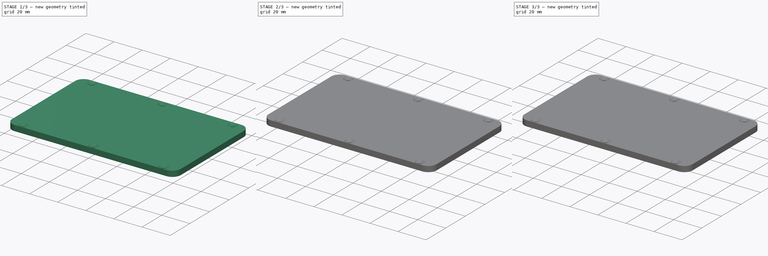
[diagram: build sequence overview — one tinted view per stage of 3, left to right]
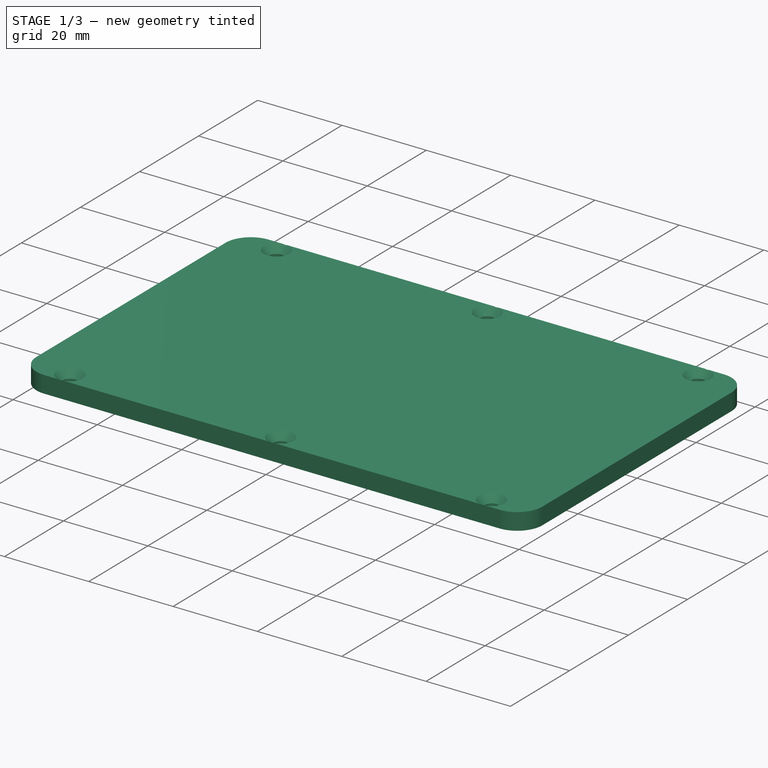
[diagram: stage 1 of 3 — iso view after this stage's code; geometry added in this stage tinted green]
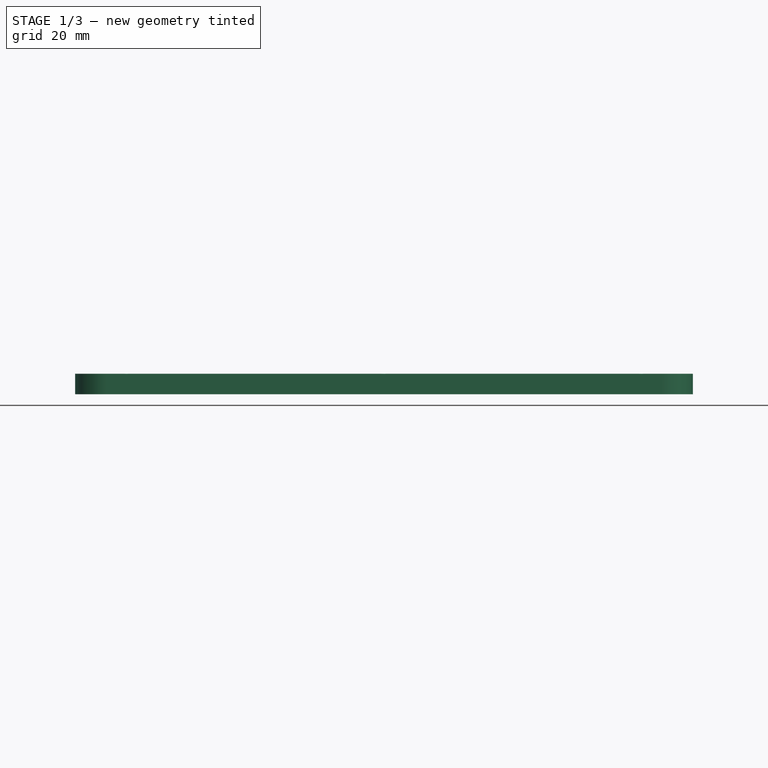
[diagram: stage 1 of 3 — front view after this stage's code; geometry added in this stage tinted green]
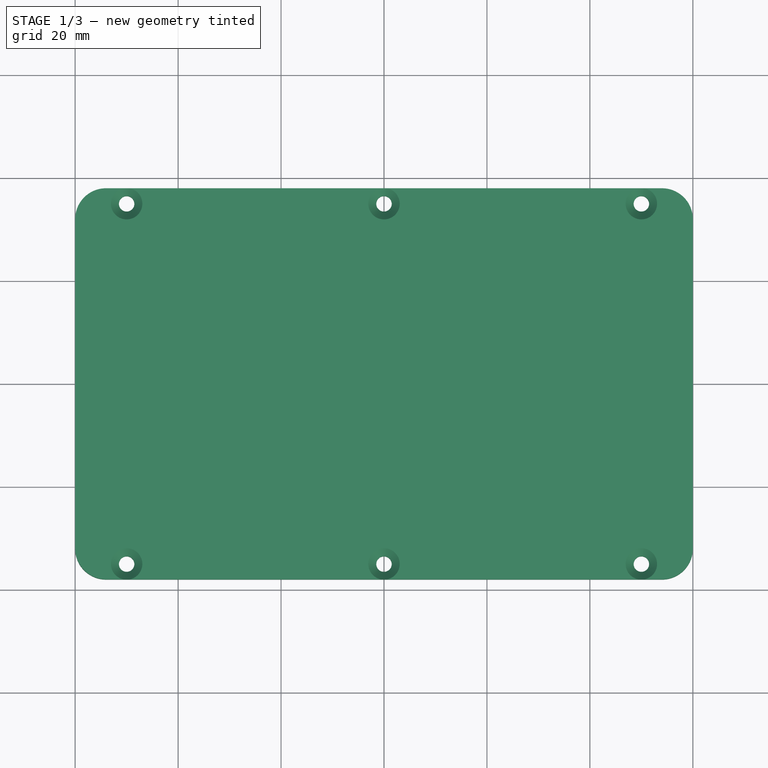
[diagram: stage 1 of 3 — top view after this stage's code; geometry added in this stage tinted green]
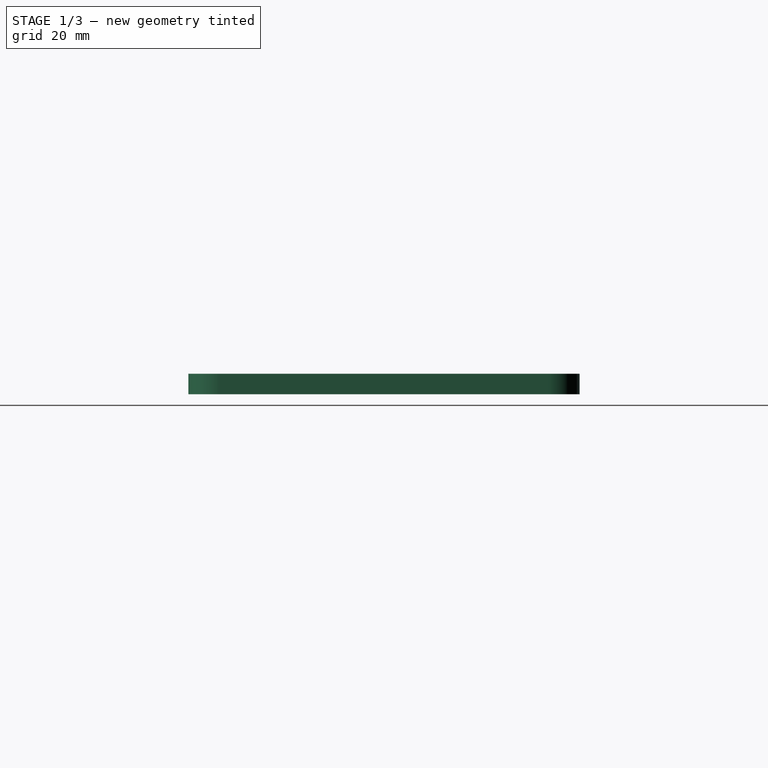
[diagram: stage 1 of 3 — right view after this stage's code; geometry added in this stage tinted green]
FCSTD DOCUMENT  (FreeCAD 0.21R33771 (Git))
Label: Капак шаси
License: All rights reserved
LicenseURL: https://en.wikipedia.org/wiki/All_rights_reserved
objects: Sketcher::SketchObject×5, PartDesign::Pad×3, PartDesign::Hole×1, PartDesign::Pocket×1, PartDesign::Body×1
note: 16 computed .brp shape members not serialized (recipe doc carries the construction recipe); baked Part::Feature solids carry a one-line shape summary decoded from their .brp

FEATURE [Sketcher::SketchObject] Sketch
  FullyConstrained = true
  MapMode = 5
  Support = -> [XY_Plane]
  sketch-geometry (8):
    g0: LineSegment StartX=60 StartY=-32 StartZ=0 EndX=60 EndY=32 EndZ=0
    g1: LineSegment StartX=54 StartY=38 StartZ=0 EndX=-54 EndY=38 EndZ=0
    g2: LineSegment StartX=-60 StartY=32 StartZ=0 EndX=-60 EndY=-32 EndZ=0
    g3: LineSegment StartX=-54 StartY=-38 StartZ=0 EndX=54 EndY=-38 EndZ=0
    g4: ArcOfCircle CenterX=-54 CenterY=32 CenterZ=0 NormalX=0 NormalY=0 NormalZ=1 AngleXU=0 Radius=6 StartAngle=1.5708 EndAngle=3.14159
    g5: ArcOfCircle CenterX=54 CenterY=32 CenterZ=0 NormalX=0 NormalY=0 NormalZ=1 AngleXU=0 Radius=6 StartAngle=-2.7e-15 EndAngle=1.5708
    g6: ArcOfCircle CenterX=54 CenterY=-32 CenterZ=0 NormalX=0 NormalY=0 NormalZ=1 AngleXU=0 Radius=6 StartAngle=4.71239 EndAngle=6.28319
    g7: ArcOfCircle CenterX=-54 CenterY=-32 CenterZ=0 NormalX=0 NormalY=0 NormalZ=1 AngleXU=0 Radius=6 StartAngle=3.14159 EndAngle=4.71239
  constraints (20):
    c: Horizontal(g1)
    c: Horizontal(g3)
    c: Vertical(g0)
    c: Vertical(g2)
    c: Tangent(g2,g4) = -1.5708
    c: Tangent(g1,g4) = -1.5708
    c: Tangent(g1,g5) = -1.5708
    c: Tangent(g0,g5) = -1.5708
    c: Tangent(g0,g6) = -1.5708
    c: Tangent(g3,g6) = -1.5708
    c: Tangent(g3,g7) = -1.5708
    c: Tangent(g2,g7) = -1.5708
    c: Radius(g7) = 6
    c: Equal(g4,g5)
    c: Equal(g5,g6)
    c: Equal(g6,g7)
    c: DistanceX(g2,g0) = 120
    c: DistanceX(g2,g-1) = 60
    c: DistanceY(g3,g-1) = 38
    c: DistanceY(g-1,g1) = 38
FEATURE [PartDesign::Pad] Pad
  Direction = (0,0,1)
  Length = 4
  Length2 = 10
  Profile = -> Sketch
  ReferenceAxis = -> Sketch [N_Axis]
  Type = 0
FEATURE [Sketcher::SketchObject] Sketch001
  FullyConstrained = true
  MapMode = 5
  Placement = pos=(0,0,4) rot=(0,0,1;0rad)
  Support = -> [Pad]
  sketch-geometry (6):
    g0: Circle CenterX=0 CenterY=-35 CenterZ=0 NormalX=0 NormalY=0 NormalZ=1 AngleXU=0 Radius=1.5
    g1: Circle CenterX=0 CenterY=35 CenterZ=0 NormalX=0 NormalY=0 NormalZ=1 AngleXU=0 Radius=1.5
    g2: Circle CenterX=50 CenterY=35 CenterZ=0 NormalX=0 NormalY=0 NormalZ=1 AngleXU=0 Radius=1.5
    g3: Circle CenterX=-50 CenterY=35 CenterZ=0 NormalX=0 NormalY=0 NormalZ=1 AngleXU=0 Radius=1.5
    g4: Circle CenterX=-50 CenterY=-35 CenterZ=0 NormalX=0 NormalY=0 NormalZ=1 AngleXU=0 Radius=1.5
    g5: Circle CenterX=50 CenterY=-35 CenterZ=0 NormalX=0 NormalY=0 NormalZ=1 AngleXU=0 Radius=1.5
  constraints (16):
    c: PointOnObject(g0,g-2)
    c: Radius(g0) = 1.5
    c: PointOnObject(g1,g-2)
    c: Radius(g1) = 1.5
    c: Equal(g3,g4)
    c: Equal(g4,g5)
    c: Equal(g5,g2)
    c: Equal(g2,g1)
    c: DistanceY(g0,g-1) = 35
    c: DistanceY(g5,g-1) = 35
    c: DistanceY(g4,g-1) = 35
    c: Symmetric(g3,g4,g-1)
    c: Symmetric(g5,g2,g-1)
    c: DistanceY(g-1,g1) = 35
    c: DistanceX(g3,g-1) = 50
    c: DistanceX(g-1,g2) = 50
FEATURE [PartDesign::Hole] Hole
  BaseFeature = -> Pad
  CustomThreadClearance = 0
  Depth = 25
  DepthType = 0
  Diameter = 3
  DrillForDepth = false
  DrillPoint = 1
  DrillPointAngle = 118
  HoleCutCountersinkAngle = 90
  HoleCutCustomValues = false
  HoleCutDepth = 0
  HoleCutDiameter = 6.1
  HoleCutType = 2
  ModelThread = false
  Profile = -> Sketch001
  Tapered = false
  TaperedAngle = 90
  ThreadClass = 0
  ThreadDepth = 25
  ThreadDepthType = 0
  ThreadDirection = 0
  ThreadFit = 0
  ThreadSize = 0
  ThreadType = 0
  Threaded = false
  UseCustomThreadClearance = false
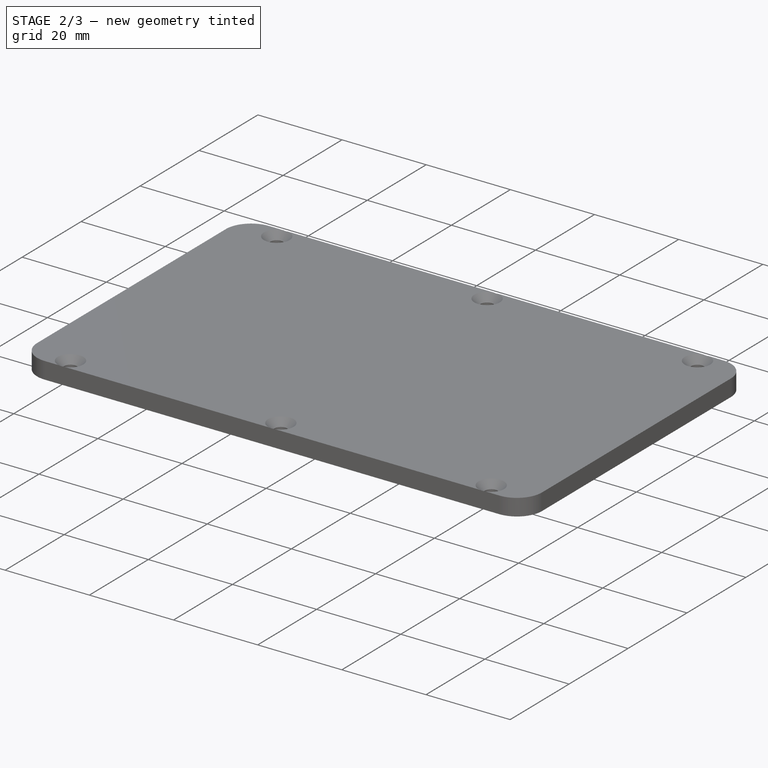
[diagram: stage 2 of 3 — iso view after this stage's code; geometry added in this stage tinted green]
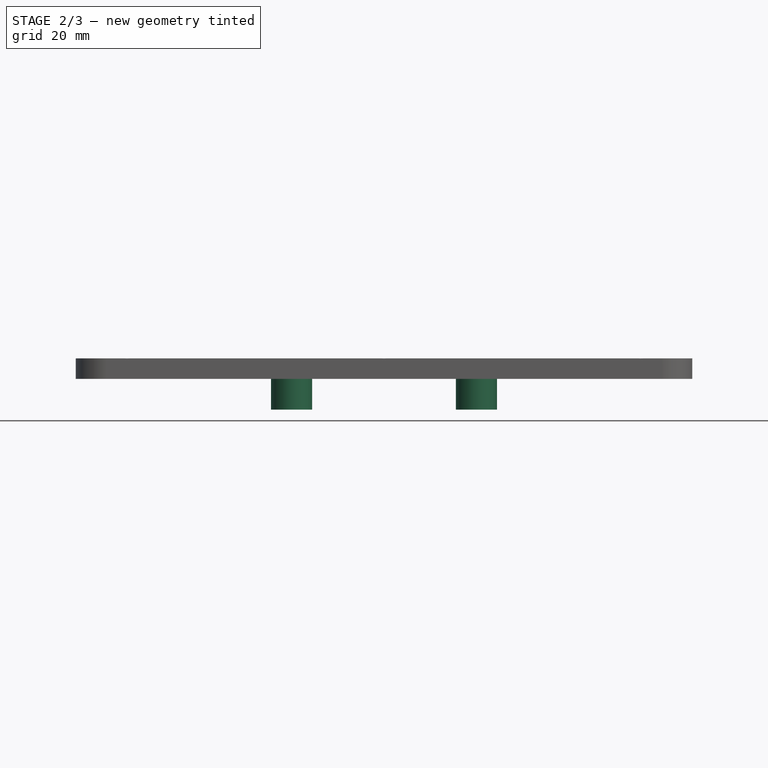
[diagram: stage 2 of 3 — front view after this stage's code; geometry added in this stage tinted green]
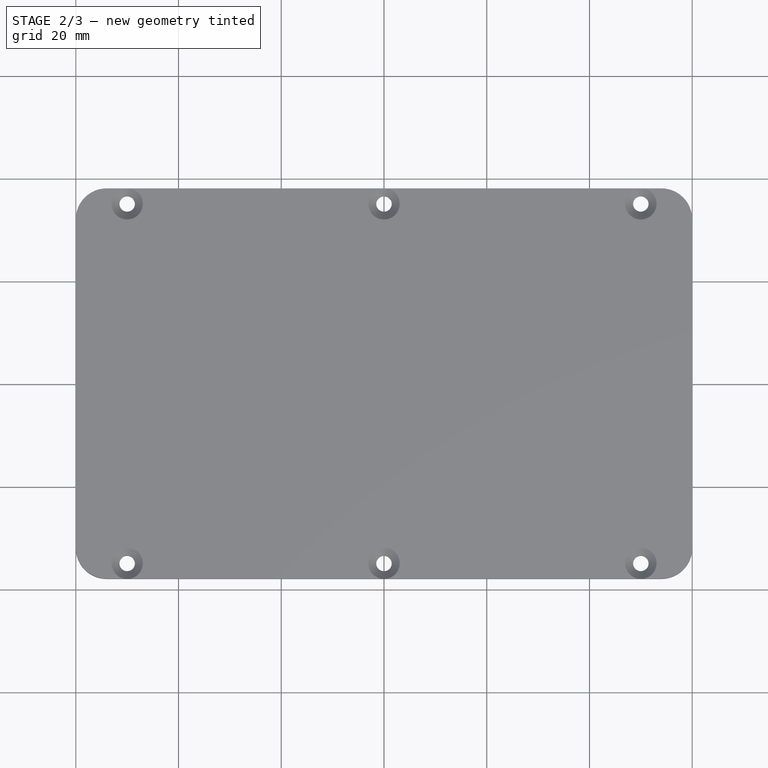
[diagram: stage 2 of 3 — top view after this stage's code; geometry added in this stage tinted green]
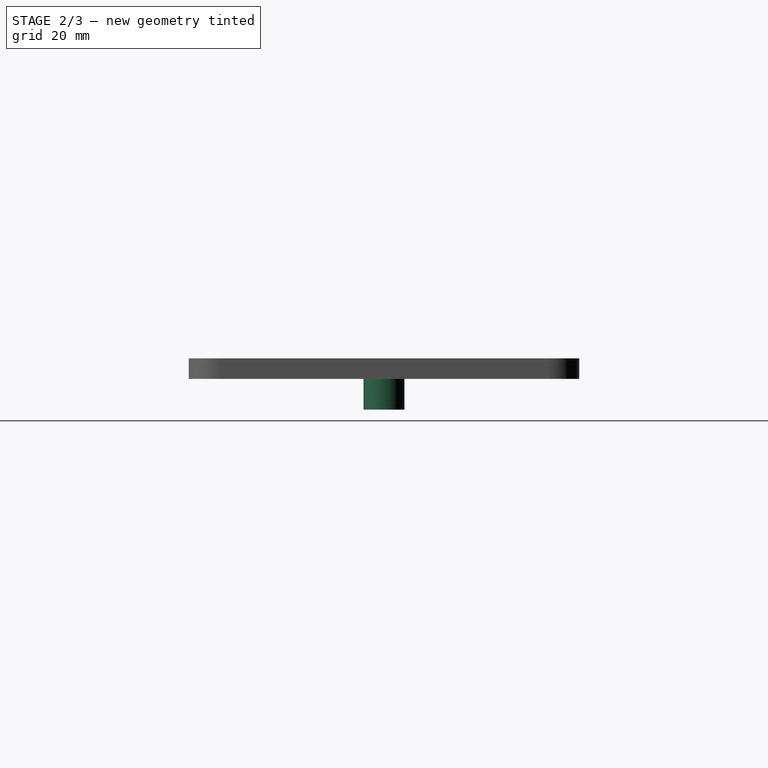
[diagram: stage 2 of 3 — right view after this stage's code; geometry added in this stage tinted green]
FEATURE [Sketcher::SketchObject] Sketch002
  FullyConstrained = true
  MapMode = 5
  Placement = pos=(0,0,0) rot=(1,0,0;3.14159rad)
  Support = -> [Hole]
  sketch-geometry (2):
    g0: Circle CenterX=18 CenterY=0 CenterZ=0 NormalX=0 NormalY=0 NormalZ=1 AngleXU=0 Radius=4
    g1: Circle CenterX=-18 CenterY=0 CenterZ=0 NormalX=0 NormalY=0 NormalZ=1 AngleXU=0 Radius=4
  constraints (6):
    c: PointOnObject(g0,g-1)
    c: PointOnObject(g1,g-1)
    c: Equal(g1,g0)
    c: Radius(g1) = 4
    c: DistanceX(g1,g-1) = 18
    c: DistanceX(g-1,g0) = 18
FEATURE [PartDesign::Pad] Pad001
  BaseFeature = -> Hole
  Direction = (0,0,-1)
  Length = 6
  Length2 = 10
  Profile = -> Sketch002
  ReferenceAxis = -> Sketch002 [N_Axis]
  Type = 0
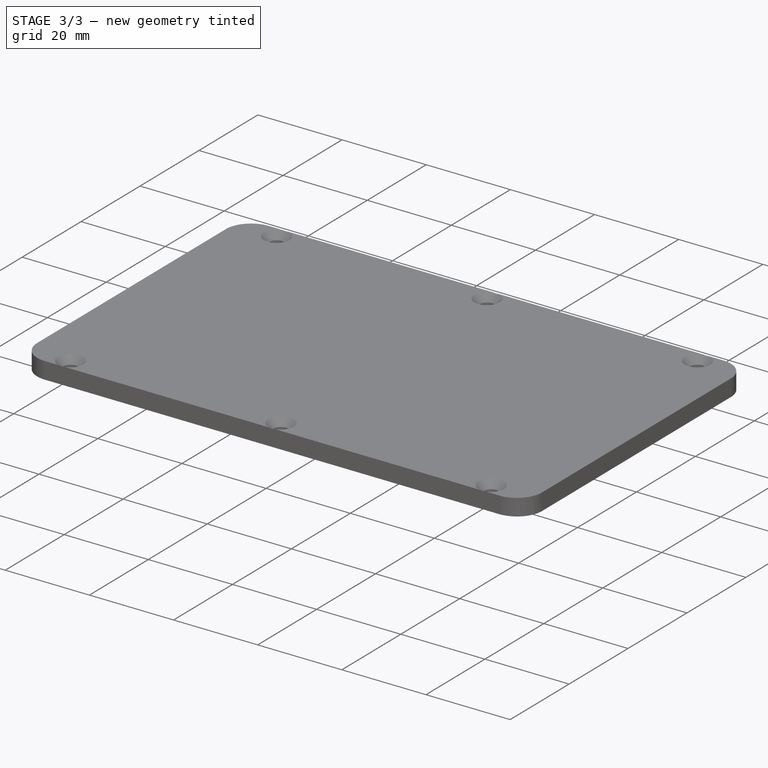
[diagram: stage 3 of 3 — iso view after this stage's code; geometry added in this stage tinted green]
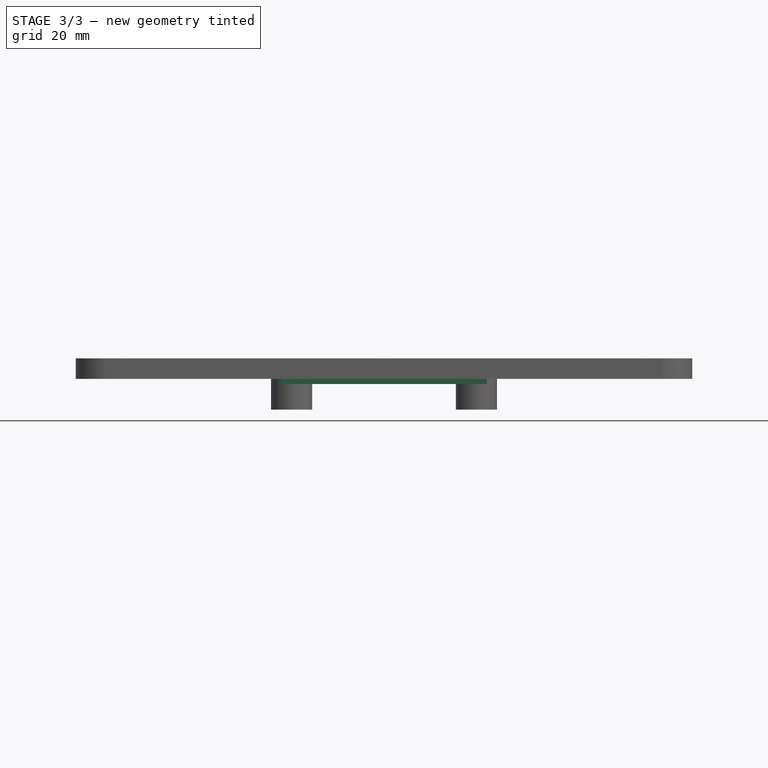
[diagram: stage 3 of 3 — front view after this stage's code; geometry added in this stage tinted green]
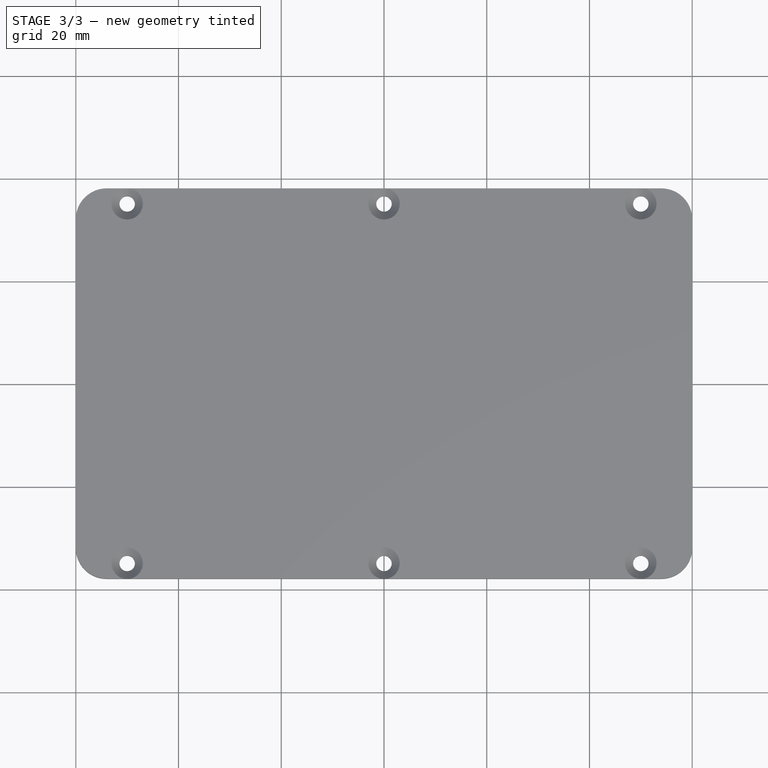
[diagram: stage 3 of 3 — top view after this stage's code; geometry added in this stage tinted green]
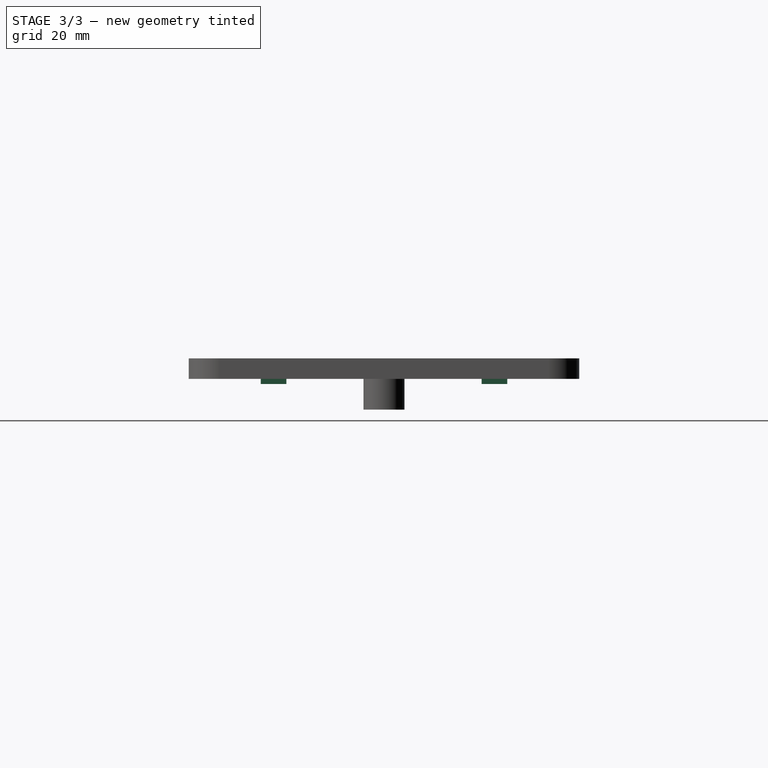
[diagram: stage 3 of 3 — right view after this stage's code; geometry added in this stage tinted green]
FEATURE [Sketcher::SketchObject] Sketch003
  FullyConstrained = true
  MapMode = 5
  Placement = pos=(0,0,0) rot=(1,0,0;3.14159rad)
  Support = -> [Pad001]
  sketch-geometry (8):
    g0: LineSegment StartX=-20 StartY=24 StartZ=0 EndX=20 EndY=24 EndZ=0
    g1: LineSegment StartX=20 StartY=24 StartZ=0 EndX=20 EndY=19 EndZ=0
    g2: LineSegment StartX=20 StartY=19 StartZ=0 EndX=-20 EndY=19 EndZ=0
    g3: LineSegment StartX=-20 StartY=19 StartZ=0 EndX=-20 EndY=24 EndZ=0
    g4: LineSegment StartX=-20 StartY=-19 StartZ=0 EndX=20 EndY=-19 EndZ=0
    g5: LineSegment StartX=20 StartY=-19 StartZ=0 EndX=20 EndY=-24 EndZ=0
    g6: LineSegment StartX=20 StartY=-24 StartZ=0 EndX=-20 EndY=-24 EndZ=0
    g7: LineSegment StartX=-20 StartY=-24 StartZ=0 EndX=-20 EndY=-19 EndZ=0
  constraints (24):
    c: Coincident(g0,g1)
    c: Coincident(g1,g2)
    c: Coincident(g2,g3)
    c: Coincident(g3,g0)
    c: Horizontal(g0)
    c: Horizontal(g2)
    c: Vertical(g1)
    c: Vertical(g3)
    c: Coincident(g4,g5)
    c: Coincident(g5,g6)
    c: Coincident(g6,g7)
    c: Coincident(g7,g4)
    c: Horizontal(g4)
    c: Horizontal(g6)
    c: Vertical(g5)
    c: Vertical(g7)
    c: DistanceY(g7,g7) = 5
    c: DistanceY(g3,g3) = 5
    c: DistanceX(g0,g0) = 40
    c: DistanceX(g4,g4) = 40
    c: DistanceX(g2,g-1) = 20
    c: DistanceY(g4,g-1) = 19
    c: DistanceY(g-1,g1) = 19
    c: DistanceX(g6,g-1) = 20
FEATURE [PartDesign::Pad] Pad002
  BaseFeature = -> Pad001
  Direction = (0,0,-1)
  Length = 1
  Length2 = 10
  Profile = -> Sketch003
  ReferenceAxis = -> Sketch003 [N_Axis]
  Type = 0
FEATURE [Sketcher::SketchObject] Sketch004
  FullyConstrained = true
  MapMode = 5
  Placement = pos=(0,0,0) rot=(1,0,0;3.14159rad)
  Support = -> [Pad002]
  sketch-geometry (16):
    g0: LineSegment StartX=-57 StartY=32 StartZ=0 EndX=-27 EndY=32 EndZ=0
    g1: LineSegment StartX=-27 StartY=32 StartZ=0 EndX=-27 EndY=-32 EndZ=0
    g2: LineSegment StartX=-27 StartY=-32 StartZ=0 EndX=-57 EndY=-32 EndZ=0
    g3: LineSegment StartX=-57 StartY=-32 StartZ=0 EndX=-57 EndY=32 EndZ=0
    g4: LineSegment StartX=27 StartY=32 StartZ=0 EndX=57 EndY=32 EndZ=0
    g5: LineSegment StartX=57 StartY=32 StartZ=0 EndX=57 EndY=-28 EndZ=0
    g6: LineSegment StartX=57 StartY=-28 StartZ=0 EndX=27 EndY=-28 EndZ=0
    g7: LineSegment StartX=27 StartY=-28 StartZ=0 EndX=27 EndY=32 EndZ=0
    g8: LineSegment StartX=-22 StartY=15 StartZ=0 EndX=22 EndY=15 EndZ=0
    g9: LineSegment StartX=22 StartY=15 StartZ=0 EndX=22 EndY=7 EndZ=0
    g10: LineSegment StartX=22 StartY=7 StartZ=0 EndX=-22 EndY=7 EndZ=0
    g11: LineSegment StartX=-22 StartY=7 StartZ=0 EndX=-22 EndY=15 EndZ=0
    g12: LineSegment StartX=-22 StartY=-7 StartZ=0 EndX=22 EndY=-7 EndZ=0
    g13: LineSegment StartX=22 StartY=-7 StartZ=0 EndX=22 EndY=-15 EndZ=0
    g14: LineSegment StartX=22 StartY=-15 StartZ=0 EndX=-22 EndY=-15 EndZ=0
    g15: LineSegment StartX=-22 StartY=-15 StartZ=0 EndX=-22 EndY=-7 EndZ=0
  constraints (48):
    c: Coincident(g0,g1)
    c: Coincident(g1,g2)
    c: Coincident(g2,g3)
    c: Coincident(g3,g0)
    c: Horizontal(g0)
    c: Horizontal(g2)
    c: Vertical(g1)
    c: Vertical(g3)
    c: Coincident(g4,g5)
    c: Coincident(g5,g6)
    c: Coincident(g6,g7)
    c: Coincident(g7,g4)
    c: Horizontal(g4)
    c: Horizontal(g6)
    c: Vertical(g5)
    c: Vertical(g7)
    c: Coincident(g8,g9)
    c: Coincident(g9,g10)
    c: Coincident(g10,g11)
    c: Coincident(g11,g8)
    c: Horizontal(g8)
    c: Horizontal(g10)
    c: Vertical(g9)
    c: Vertical(g11)
    c: Coincident(g12,g13)
    c: Coincident(g13,g14)
    c: Coincident(g14,g15)
    c: Coincident(g15,g12)
    c: Horizontal(g12)
    c: Horizontal(g14)
    c: Vertical(g13)
    c: Vertical(g15)
    c: DistanceX(g0,g0) = 30
    c: DistanceY(g3,g3) = 64
    c: DistanceX(g0,g-1) = 57
    c: DistanceY(g-1,g0) = 32
    c: DistanceX(g4,g4) = 30
    c: DistanceY(g5,g5) = 60
    c: DistanceX(g-1,g4) = 57
    c: DistanceY(g-1,g4) = 32
    c: DistanceY(g9,g9) = 8
    c: DistanceX(g8,g8) = 44
    c: DistanceY(g-1,g8) = 15
    c: DistanceX(g-1,g8) = 22
    c: DistanceY(g13,g13) = 8
    c: DistanceY(g13,g-1) = 15
    c: DistanceX(g-1,g12) = 22
    c: DistanceX(g14,g14) = 44
FEATURE [PartDesign::Pocket] Pocket
  BaseFeature = -> Pad002
  Direction = (0,0,1)
  Length = 2
  Length2 = 5
  Profile = -> Sketch004
  ReferenceAxis = -> Sketch004 [N_Axis]
  Type = 0
FEATURE [PartDesign::Body] Body
  Group = -> [Sketch,Pad,Sketch001,Hole,Sketch002,Pad001,Sketch003,Pad002,Sketch004,Pocket]
  Origin = -> Origin
  Tip = -> Pocket
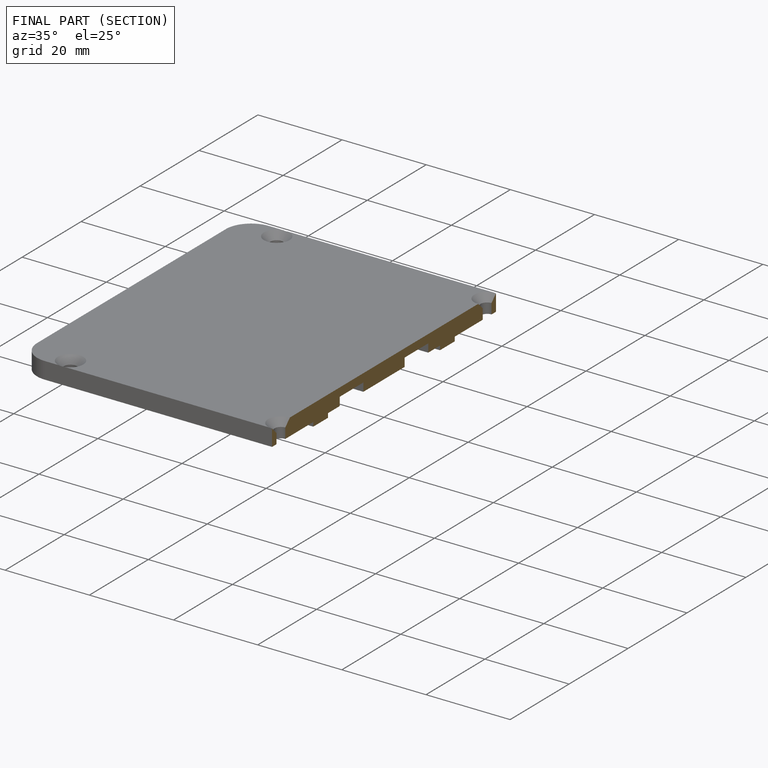
[diagram: finished part — half-section view (interior)]
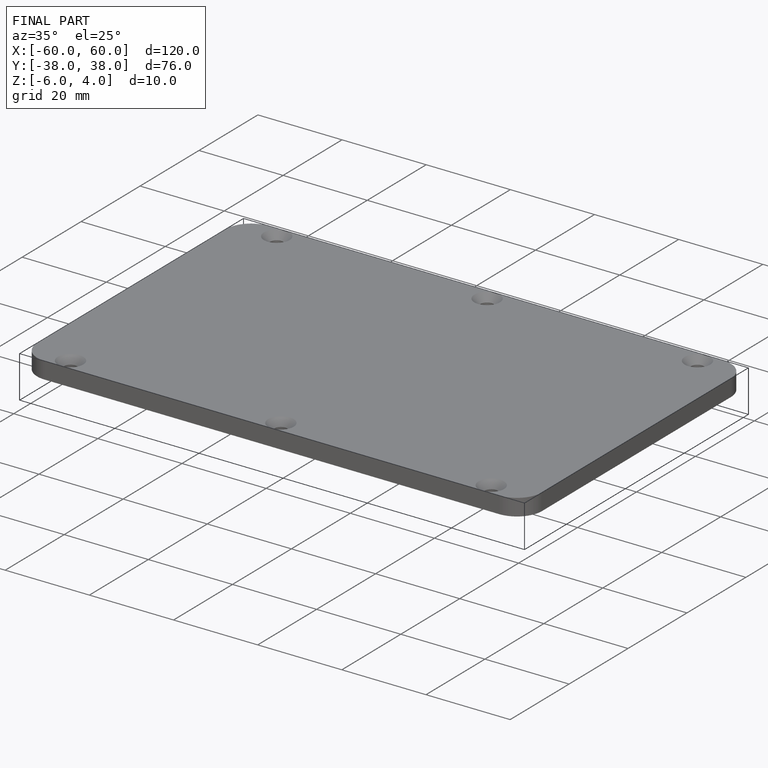
[diagram: finished part — iso view with bounding-box wireframe]
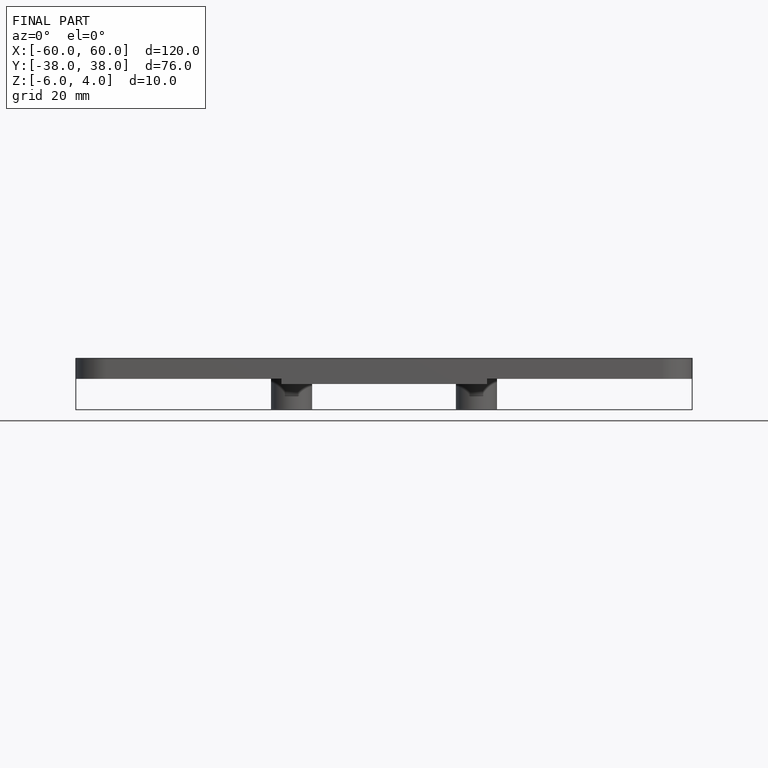
[diagram: finished part — front view with bounding-box wireframe]
